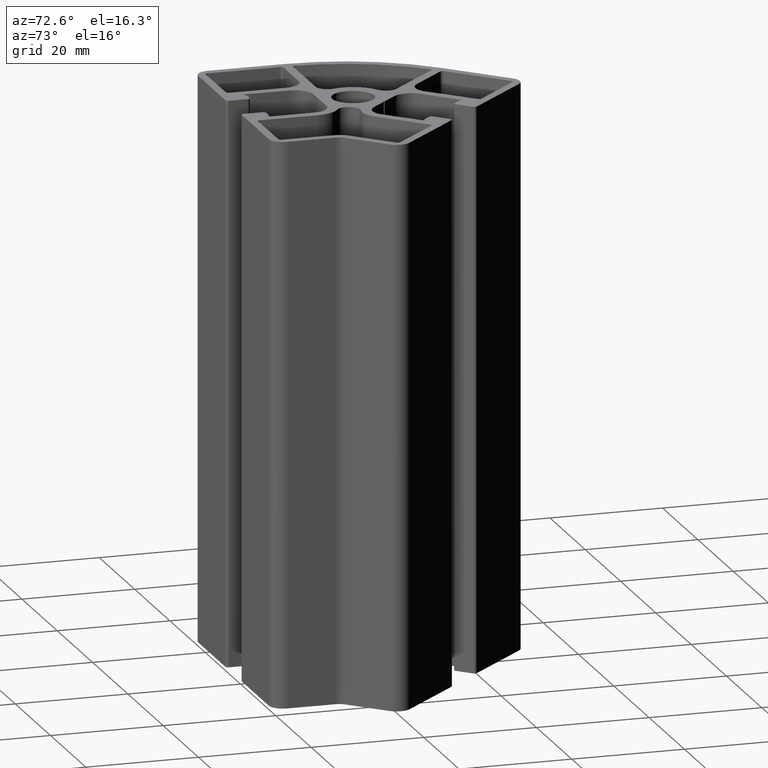
[diagram: clean part render]
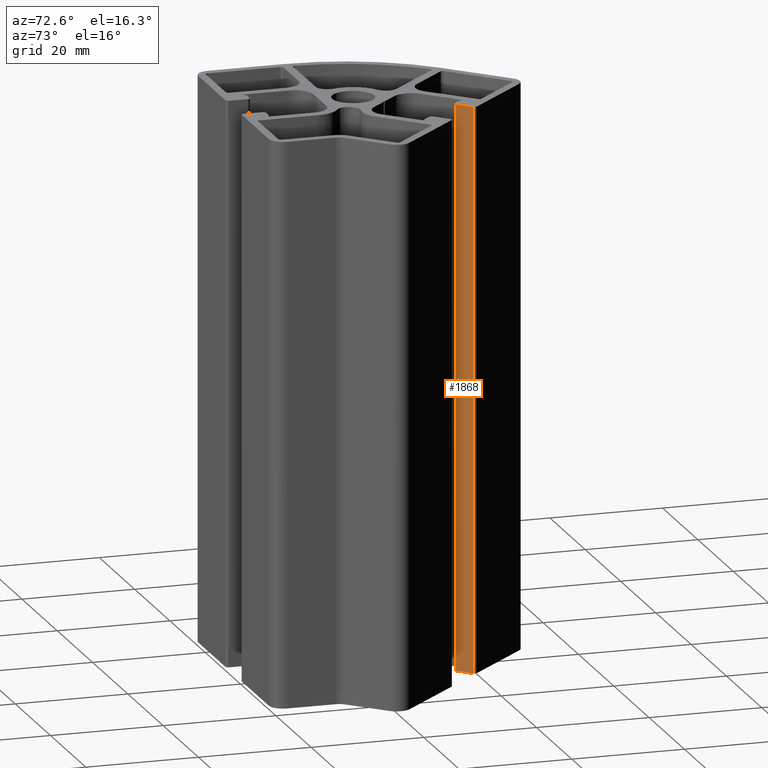
[diagram: same view with one face highlighted and labeled with its STEP entity id]
A machine part, auxiliary view. The second image highlights one B-rep face of the part: STEP entity #1868.
In plain terms, the highlighted planar face has unit normal (0.7071, -0.7071, 0).
Its self-contained STEP definition (entity closure, byte-faithful):
#246=FACE_OUTER_BOUND('',#341,.T.);
#341=EDGE_LOOP('',(#1514,#1515,#1516,#1517));
#522=LINE('',#3118,#705);
#523=LINE('',#3122,#706);
#524=LINE('',#3124,#707);
#525=LINE('',#3125,#708);
#705=VECTOR('',#2563,100.);
#706=VECTOR('',#2568,3.3);
#707=VECTOR('',#2569,100.);
#708=VECTOR('',#2570,3.3);
#893=VERTEX_POINT('',#3115);
#894=VERTEX_POINT('',#3117);
#895=VERTEX_POINT('',#3121);
#896=VERTEX_POINT('',#3123);
#1157=EDGE_CURVE('',#893,#894,#522,.T.);
#1159=EDGE_CURVE('',#893,#895,#523,.T.);
#1160=EDGE_CURVE('',#895,#896,#524,.T.);
#1161=EDGE_CURVE('',#894,#896,#525,.T.);
#1514=ORIENTED_EDGE('',*,*,#1159,.T.);
#1515=ORIENTED_EDGE('',*,*,#1160,.T.);
#1516=ORIENTED_EDGE('',*,*,#1161,.F.);
#1517=ORIENTED_EDGE('',*,*,#1157,.F.);
#1777=PLANE('',#2050);
#1868=ADVANCED_FACE('',(#246),#1777,.T.);
#2050=AXIS2_PLACEMENT_3D('',#3120,#2566,#2567);
#2563=DIRECTION('',(0.,0.,-1.));
#2566=DIRECTION('center_axis',(0.707106781186547,-0.707106781186549,0.));
#2567=DIRECTION('ref_axis',(0.707106781186548,0.707106781186547,0.));
#2568=DIRECTION('',(-0.707106781186549,-0.707106781186546,0.));
#2569=DIRECTION('',(0.,0.,-1.));
#2570=DIRECTION('',(-0.707106781186549,-0.707106781186546,0.));
#3115=CARTESIAN_POINT('',(11.723830432073,17.5928167159213,100.));
#3117=CARTESIAN_POINT('',(11.723830432073,17.5928167159213,0.));
#3118=CARTESIAN_POINT('',(11.723830432073,17.5928167159213,0.));
#3120=CARTESIAN_POINT('Origin',(9.39037805415736,15.2593643380057,0.));
#3121=CARTESIAN_POINT('',(9.39037805415736,15.2593643380057,100.));
#3122=CARTESIAN_POINT('',(5.23325386495534,11.1022401488037,100.));
#3123=CARTESIAN_POINT('',(9.39037805415736,15.2593643380057,0.));
#3124=CARTESIAN_POINT('',(9.39037805415736,15.2593643380057,0.));
#3125=CARTESIAN_POINT('',(5.23325386495534,11.1022401488037,0.));